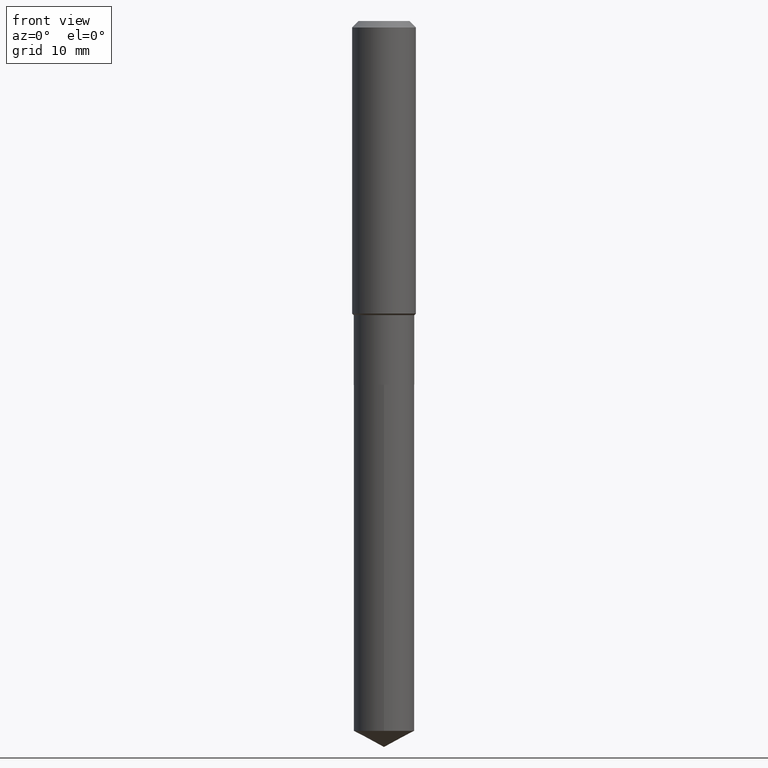
[diagram: clean part render]
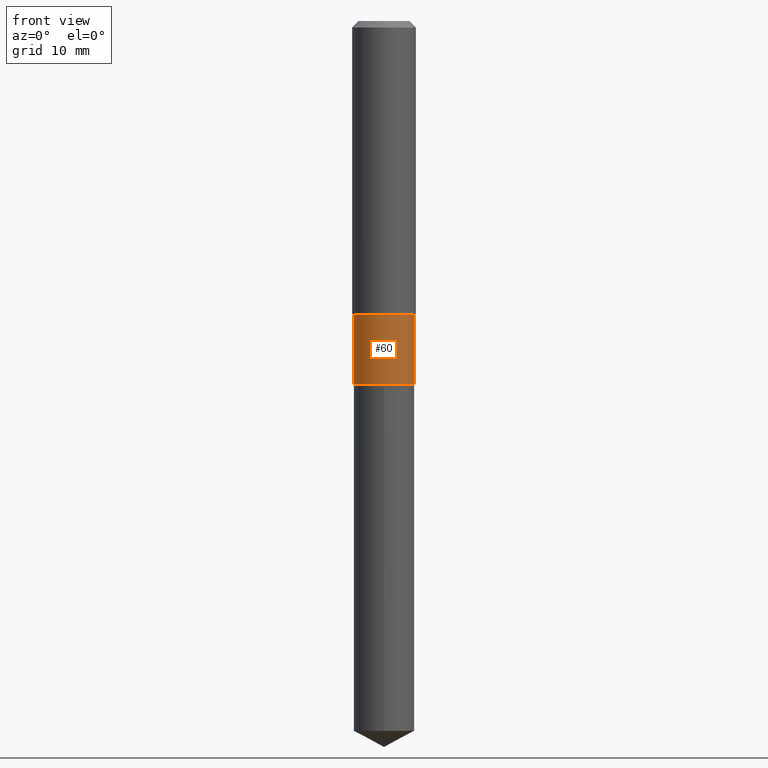
[diagram: same view with one face highlighted and labeled with its STEP entity id]
A machine part, front view. The second image highlights one B-rep face of the part: STEP entity #60.
In plain terms, the highlighted cylindrical surface (edge-blend (fillet) strip) has radius 3.7998 mm, axis along (-0, 0, 1).
Its self-contained STEP definition (entity closure, byte-faithful):
#7 = DIRECTION ( 'NONE',  ( -2.445468806185136597E-29, 3.491481338843145583E-15, 1.000000000000000000 ) ) ;
#12 = VERTEX_POINT ( 'NONE', #420 ) ;
#29 = EDGE_CURVE ( 'NONE', #392, #374, #343, .T. ) ;
#35 = CARTESIAN_POINT ( 'NONE',  ( 0.000000000000000000, 0.000000000000000000, 0.000000000000000000 ) ) ;
#38 = EDGE_CURVE ( 'NONE', #12, #369, #82, .T. ) ;
#43 = VECTOR ( 'NONE', #423, 39.37007874015748143 ) ;
#56 = ORIENTED_EDGE ( 'NONE', *, *, #38, .T. ) ;
#60 = ADVANCED_FACE ( 'NONE', ( #349 ), #390, .T. ) ;
#82 = CIRCLE ( 'NONE', #154, 0.1496000000000000107 ) ;
#86 = ORIENTED_EDGE ( 'NONE', *, *, #431, .T. ) ;
#144 = AXIS2_PLACEMENT_3D ( 'NONE', #35, #196, #263 ) ;
#154 = AXIS2_PLACEMENT_3D ( 'NONE', #286, #7, #250 ) ;
#167 = DIRECTION ( 'NONE',  ( -2.445468806185136877E-29, 3.491481338843145188E-15, 1.000000000000000000 ) ) ;
#168 = EDGE_CURVE ( 'NONE', #12, #392, #282, .T. ) ;
#173 = ORIENTED_EDGE ( 'NONE', *, *, #29, .F. ) ;
#196 = DIRECTION ( 'NONE',  ( -2.445468806185136597E-29, 3.491481338843145583E-15, 1.000000000000000000 ) ) ;
#206 = CARTESIAN_POINT ( 'NONE',  ( 0.1495999999999999830, -1.044651216581865404E-15, 7.294760456590720327E-30 ) ) ;
#228 = CARTESIAN_POINT ( 'NONE',  ( 0.1496000000000000107, -7.311161923537544091E-15, -1.794800000000000173 ) ) ;
#249 = ORIENTED_EDGE ( 'NONE', *, *, #168, .F. ) ;
#250 = DIRECTION ( 'NONE',  ( 1.000000000000000000, -6.982962677686268288E-15, 0.000000000000000000 ) ) ;
#263 = DIRECTION ( 'NONE',  ( 1.000000000000000000, -6.982962677686266711E-15, 4.876176775795936353E-29 ) ) ;
#282 = LINE ( 'NONE', #353, #457 ) ;
#286 = CARTESIAN_POINT ( 'NONE',  ( 4.389127413341083429E-29, -6.266510706955677702E-15, -1.794800000000000173 ) ) ;
#287 = DIRECTION ( 'NONE',  ( -2.445468806185136597E-29, 3.491481338843145583E-15, 1.000000000000000000 ) ) ;
#343 = CIRCLE ( 'NONE', #419, 0.1495999999999999830 ) ;
#348 = CARTESIAN_POINT ( 'NONE',  ( 0.1495999999999999830, -6.111488935511037930E-15, -1.451200000000000045 ) ) ;
#349 = FACE_OUTER_BOUND ( 'NONE', #437, .T. ) ;
#353 = CARTESIAN_POINT ( 'NONE',  ( -0.1495999999999999830, 1.062971932697109757E-15, -7.358726895021338760E-30 ) ) ;
#369 = VERTEX_POINT ( 'NONE', #228 ) ;
#374 = VERTEX_POINT ( 'NONE', #348 ) ;
#390 = CYLINDRICAL_SURFACE ( 'NONE', #144, 0.1495999999999999830 ) ;
#392 = VERTEX_POINT ( 'NONE', #467 ) ;
#405 = LINE ( 'NONE', #206, #43 ) ;
#419 = AXIS2_PLACEMENT_3D ( 'NONE', #466, #287, #436 ) ;
#420 = CARTESIAN_POINT ( 'NONE',  ( -0.1496000000000000107, -4.603702280245315061E-15, -1.794800000000000173 ) ) ;
#423 = DIRECTION ( 'NONE',  ( -2.445468806185136877E-29, 3.491481338843145188E-15, 1.000000000000000000 ) ) ;
#431 = EDGE_CURVE ( 'NONE', #369, #374, #405, .T. ) ;
#436 = DIRECTION ( 'NONE',  ( 1.000000000000000000, -6.982962677686262766E-15, 0.000000000000000000 ) ) ;
#437 = EDGE_LOOP ( 'NONE', ( #249, #56, #86, #173 ) ) ;
#457 = VECTOR ( 'NONE', #167, 39.37007874015748143 ) ;
#466 = CARTESIAN_POINT ( 'NONE',  ( 3.548864331535870340E-29, -5.066837718929173118E-15, -1.451200000000000045 ) ) ;
#467 = CARTESIAN_POINT ( 'NONE',  ( -0.1495999999999999830, -4.603702280245315850E-15, -1.451200000000000045 ) ) ;